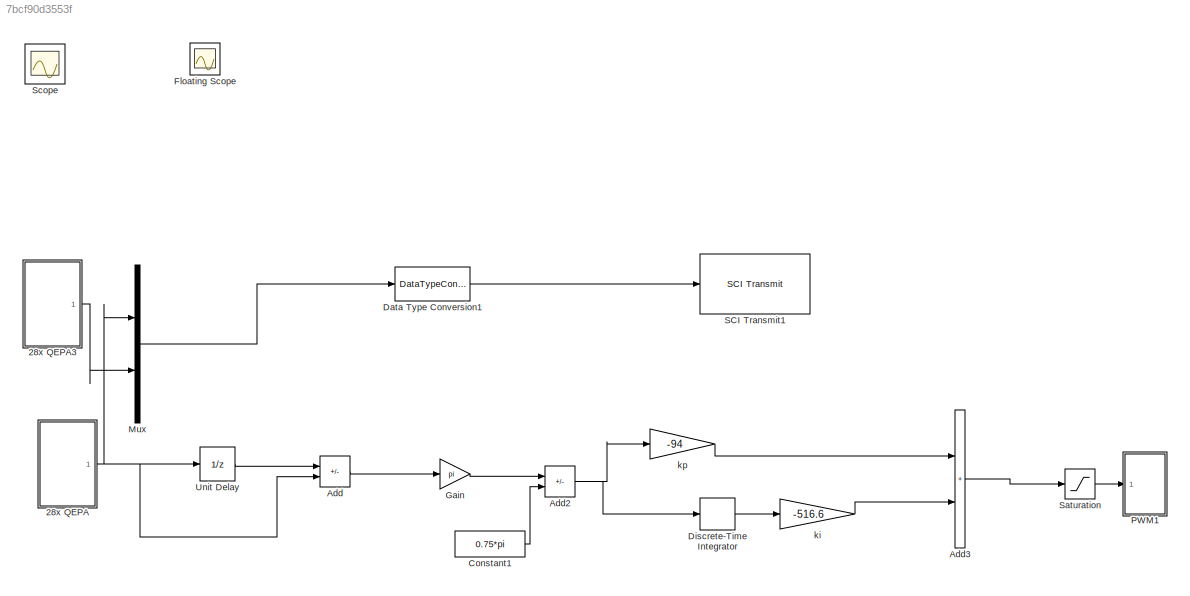
MODEL slx_7bcf90d3553f
KIND model
CONFIG AbsTol = auto
CONFIG EnableMultiTasking = on
CONFIG FixedStep = 0.001
CONFIG MaxStep = auto
CONFIG MinStep = auto
CONFIG RelTol = 1e-3
CONFIG SampleTimeConstraint = Unconstrained
CONFIG Solver = FixedStepDiscrete
CONFIG SolverName = FixedStepDiscrete
CONFIG StartTime = 0
CONFIG StopTime = inf
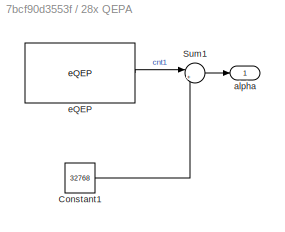
BLOCK [SubSystem] 28x QEPA
  Ports = [0, 1]
  RequestExecContextInheritance = off
BLOCK [Constant] 28x QEPA/Constant1
  Value = 32768
BLOCK [Sum] 28x QEPA/Sum1
  Inputs = |+-
  Ports = [2, 1]
BLOCK [Outport] 28x QEPA/alpha
BLOCK [Reference] 28x QEPA/eQEP  REF=c280xlib/eQEP
  Ports = [0, 1]
  SourceBlock = c280xlib/eQEP
  SourceProductBaseCode = TIC2000
  SourceType = C28x eQEP
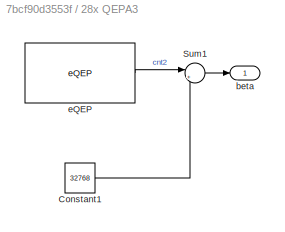
BLOCK [SubSystem] 28x QEPA3
  Ports = [0, 1]
  RequestExecContextInheritance = off
BLOCK [Constant] 28x QEPA3/Constant1
  Value = 32768
BLOCK [Sum] 28x QEPA3/Sum1
  Inputs = |+-
  Ports = [2, 1]
BLOCK [Outport] 28x QEPA3/beta
BLOCK [Reference] 28x QEPA3/eQEP  REF=c280xlib/eQEP
  Ports = [0, 1]
  SourceBlock = c280xlib/eQEP
  SourceProductBaseCode = TIC2000
  SourceType = C28x eQEP
BLOCK [Sum] Add
  IconShape = rectangular
  Inputs = -+
  Ports = [2, 1]
  SampleTime = 0.001
BLOCK [Sum] Add2
  IconShape = rectangular
  Inputs = +-
  Ports = [2, 1]
  SampleTime = 0.001
BLOCK [Sum] Add3
  IconShape = rectangular
  Ports = [2, 1]
  SampleTime = 0.001
BLOCK [Constant] Constant1
  Value = 0.75*pi
  VectorParams1D = off
BLOCK [DataTypeConversion] Data Type Conversion1
  OutDataTypeStr = uint16
  RndMeth = Floor
  SampleTime = 0.001
  SaturateOnIntegerOverflow = off
BLOCK [DiscreteIntegrator] Discrete-Time Integrator
  ICPrevOutput = DiscIntNeverNeededParam
  ICPrevScaledInput = DiscIntNeverNeededParam
  Ports = [1, 1]
  SampleTime = 0.001
BLOCK [Scope] Floating Scope
  Floating = off
  IOType = viewer
  NumInputPorts = 1
  Ports = []
  ScopeSpecificationString = C++SS(StrPVP('Location','[376, 294, 700, 533]'),StrPVP('Open','off'),MxPVP('AxesTitles',54,'struct(''axes1'',''%<SignalLabel>'')'),StrPVP('ShowLegends','off'),StrPVP('DataFormat','StructureWithTime'),StrPVP('LimitDataPoints','on'),StrPVP('Decimation','1'),StrPVP('BlockParamSampleInput','off'))
BLOCK [Gain] Gain
  Gain = pi
  SampleTime = 0.001
BLOCK [Mux] Mux
  DisplayOption = bar
  Inputs = 2
  Ports = [2, 1]
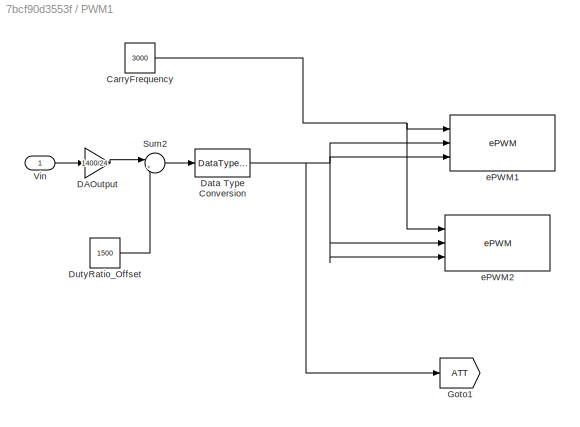
BLOCK [SubSystem] PWM1
  Ports = [1]
  RequestExecContextInheritance = off
BLOCK [Constant] PWM1/CarryFrequency
  OutDataTypeStr = uint16
  Value = 3000
BLOCK [Gain] PWM1/DAOutput
  Gain = 1400/24
  OutDataTypeStr = Inherit: Same as input
  ParamDataTypeStr = Inherit: Same as input
  SaturateOnIntegerOverflow = on
BLOCK [DataTypeConversion] PWM1/Data Type Conversion
BLOCK [Constant] PWM1/DutyRatio_Offset
  Value = 1500
BLOCK [Goto] PWM1/Goto1
  GotoTag = ATT
  TagVisibility = global
BLOCK [Sum] PWM1/Sum2
  Inputs = |++
  Ports = [2, 1]
  SaturateOnIntegerOverflow = on
BLOCK [Inport] PWM1/Vin
BLOCK [Reference] PWM1/ePWM1  REF=c280xlib/ePWM
  Ports = [3]
  SourceBlock = c280xlib/ePWM
  SourceProductBaseCode = TIC2000
  SourceType = C280x/C2833x ePWM
BLOCK [Reference] PWM1/ePWM2  REF=c280xlib/ePWM
  Ports = [3]
  SourceBlock = c280xlib/ePWM
  SourceProductBaseCode = TIC2000
  SourceType = C280x/C2833x ePWM
BLOCK [Reference] SCI Transmit1  REF=c280xlib/SCI Transmit
  Ports = [1]
  SourceBlock = c280xlib/SCI Transmit
  SourceProductBaseCode = TIC2000
  SourceType = C28x SCI Transmit
BLOCK [Saturate] Saturation
  LowerLimit = -12
  SampleTime = 0.001
  UpperLimit = 12
BLOCK [Scope] Scope
  Floating = off
  IOType = viewer
  NumInputPorts = 1
  Ports = []
  ScopeSpecificationString = C++SS(StrPVP('Location','[188, 365, 512, 604]'),StrPVP('Open','off'),MxPVP('AxesTitles',54,'struct(''axes1'',''%<SignalLabel>'')'),StrPVP('ShowDataMarkers','off'),StrPVP('ShowLegends','off'),StrPVP('MaxDataPoints','7500'),StrPVP('LimitDataPoints','on'),StrPVP('DataFormat','Array'),StrPVP('Decimation','1'),StrPVP('BlockParamSampleInput','off'))
BLOCK [UnitDelay] Unit Delay
  HasFrameUpgradeWarning = on
  SampleTime = 0.001
BLOCK [Gain] ki
  Gain = -516.6
  SampleTime = 0.001
BLOCK [Gain] kp
  Gain = -94
  SampleTime = 0.001
LINE 28x QEPA/Constant1:1 -> 28x QEPA/Sum1:2
LINE 28x QEPA/Sum1:1 -> 28x QEPA/alpha:1
LINE 28x QEPA/eQEP:1 -> 28x QEPA/Sum1:1
LINE 28x QEPA3/Constant1:1 -> 28x QEPA3/Sum1:2
LINE 28x QEPA3/Sum1:1 -> 28x QEPA3/beta:1
LINE 28x QEPA3/eQEP:1 -> 28x QEPA3/Sum1:1
LINE 28x QEPA3:1 -> Mux:2
NET 28x QEPA:1 -> Add:2, Mux:1, Unit Delay:1
NET Add2:1 -> Discrete-Time Integrator:1, kp:1
LINE Add3:1 -> Saturation:1
LINE Add:1 -> Gain:1
LINE Constant1:1 -> Add2:2
LINE Data Type Conversion1:1 -> SCI Transmit1:1
LINE Discrete-Time Integrator:1 -> ki:1
LINE Gain:1 -> Add2:1
LINE Mux:1 -> Data Type Conversion1:1
NET PWM1/CarryFrequency:1 -> PWM1/ePWM1:1, PWM1/ePWM2:1
LINE PWM1/DAOutput:1 -> PWM1/Sum2:1
NET PWM1/Data Type Conversion:1 -> PWM1/Goto1:1, PWM1/ePWM1:2, PWM1/ePWM1:3, PWM1/ePWM2:2, PWM1/ePWM2:3
LINE PWM1/DutyRatio_Offset:1 -> PWM1/Sum2:2
LINE PWM1/Sum2:1 -> PWM1/Data Type Conversion:1
LINE PWM1/Vin:1 -> PWM1/DAOutput:1
LINE Saturation:1 -> PWM1:1
LINE Unit Delay:1 -> Add:1
LINE ki:1 -> Add3:2
LINE kp:1 -> Add3:1
note: NET lines group one-source signal fan-out (src -> all destinations, sorted); 1:1 wires keep LINE
